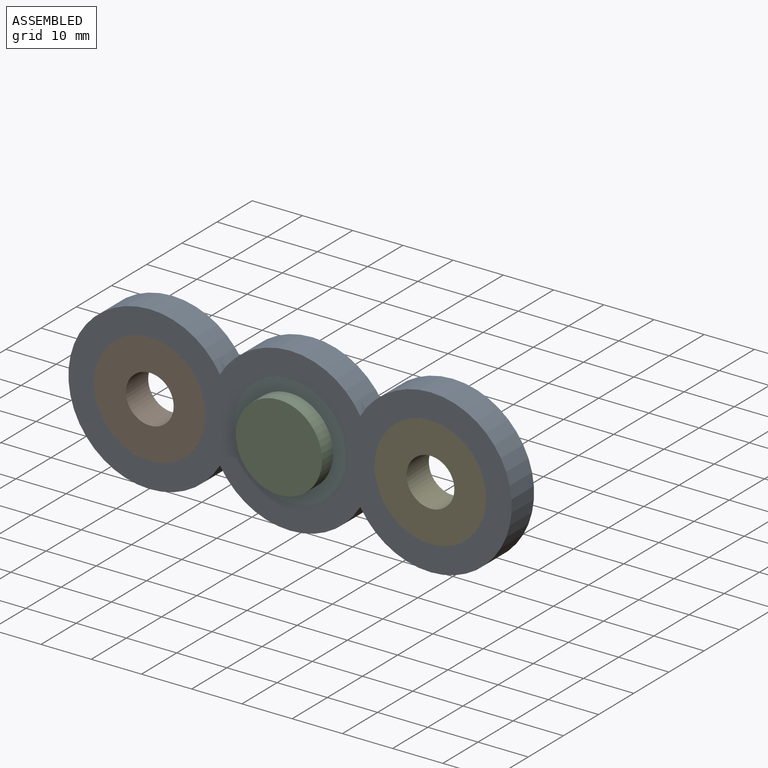
[diagram: assembled view]
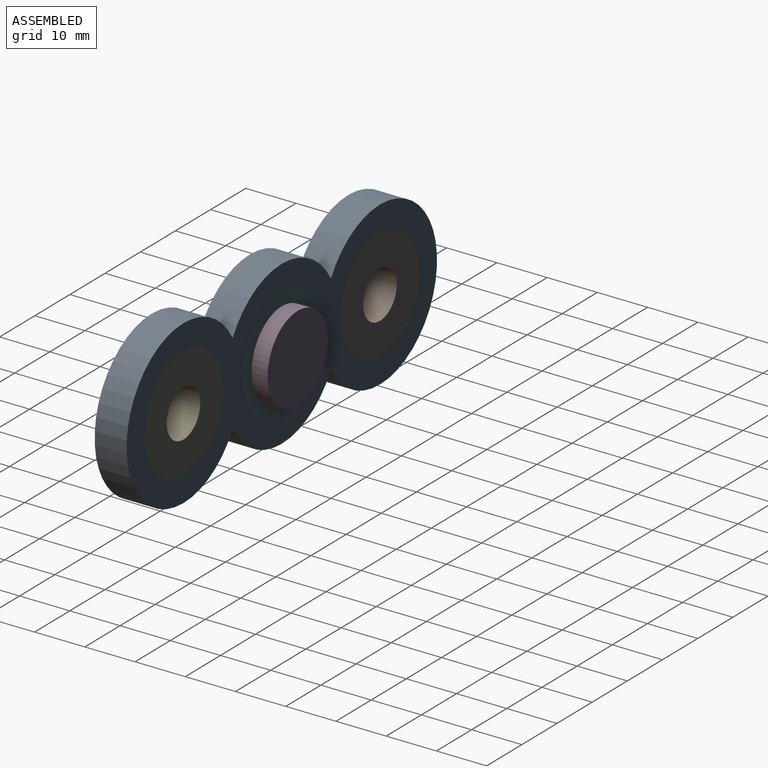
[diagram: assembled view, second angle]
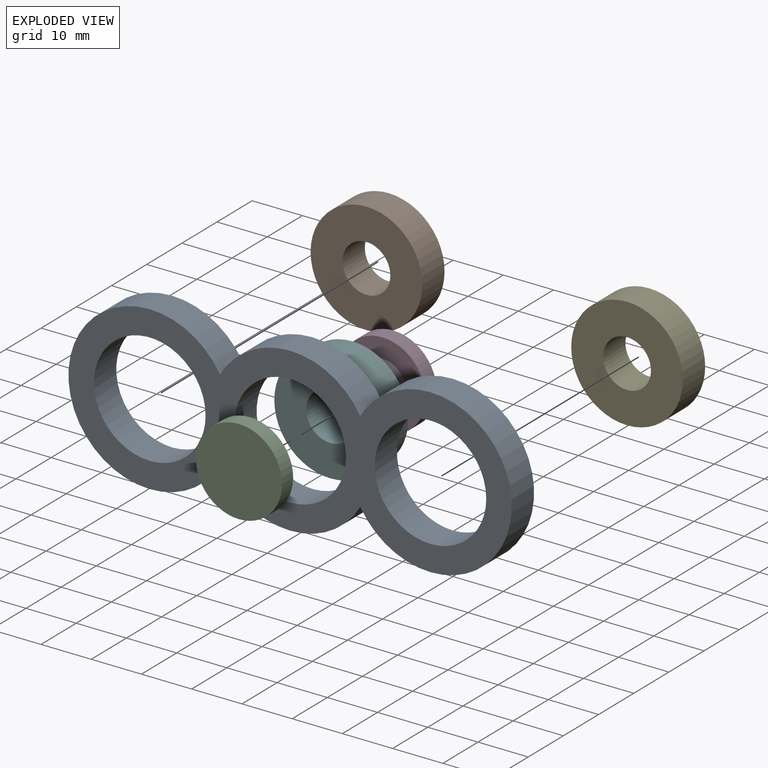
[diagram: exploded view]
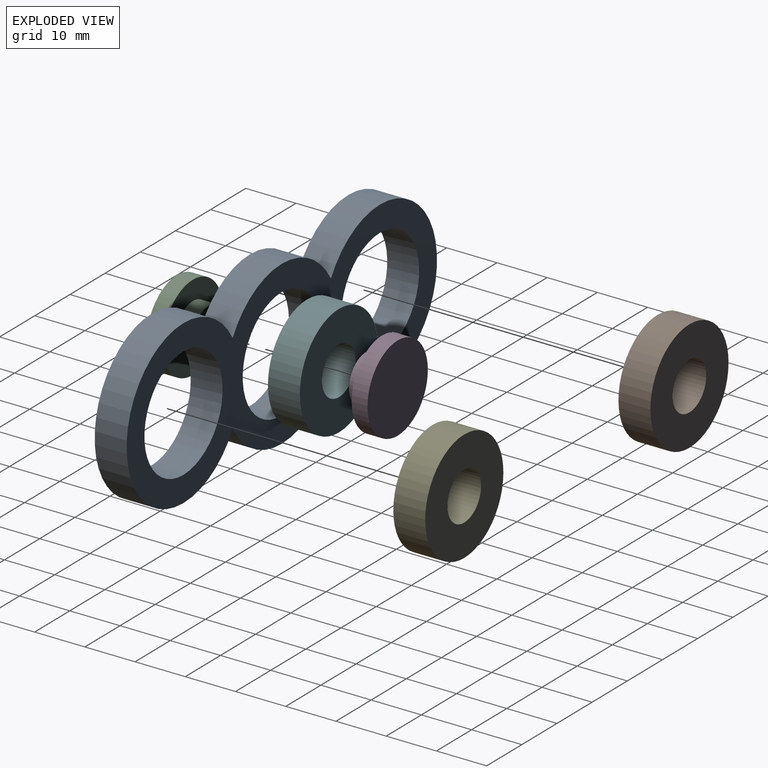
[diagram: exploded view, second angle]
ASSEMBLY  parts=6 mates=10
PART A: 9 faces, bbox 88.3x6.4x32.4 mm
  f0: cylinder r=16.19mm len=32.39mm, axis (0,1,0), area 537mm2, adj f1,f3,f4,f5
  f1: cylinder r=16.19mm len=27.94mm, axis (0,1,0), area 214mm2, adj f0,f2,f4,f5
  f2: cylinder r=16.19mm len=32.39mm, axis (0,1,0), area 537mm2, adj f1,f3,f4,f5
  f3: cylinder r=16.19mm len=27.94mm, axis (0,1,0), area 214mm2, adj f0,f2,f4,f5
  f4: plane 88.27x32.39mm, normal (0,-1,0), area 1208.8mm2, adj f0,f1,f2,f3,f6,f7,f8
  f5: plane 88.27x32.39mm, normal (0,1,0), area 1208.8mm2, adj f0,f1,f2,f3,f6,f7,f8
  f6: cylinder r=11.11mm len=22.23mm, axis (0,-1,0), area 443.4mm2, adj f4,f5
  f7: cylinder r=11.11mm len=22.23mm, axis (0,-1,0), area 443.4mm2, adj f4,f5
  f8: cylinder r=11.11mm len=22.23mm, axis (0,-1,0), area 443.4mm2, adj f4,f5
PART B: 4 faces, bbox 22.2x6.4x22.2 mm
  f0: cylinder r=11.11mm len=22.23mm, axis (0,1,0), area 443.4mm2, adj f1,f2
  f1: plane 22.23x22.23mm, normal (0,-1,0), area 316.7mm2, adj f0,f3
  f2: plane 22.23x22.23mm, normal (0,1,0), area 316.7mm2, adj f0,f3
  f3: cylinder r=4.76mm len=9.53mm, axis (0,-1,0), area 190mm2, adj f1,f2
PART C: 5 faces, bbox 17.1x6.4x17.1 mm
  f0: cylinder r=8.57mm len=17.15mm, axis (0,1,0), area 171mm2, adj f1,f2
  f1: plane 17.15x17.15mm, normal (0,-1,0), area 159.6mm2, adj f0,f3
  f2: plane 17.15x17.15mm, normal (0,1,0), area 230.9mm2, adj f0
  f3: cylinder r=4.76mm len=9.53mm, axis (0,1,0), area 95mm2, adj f1,f4
  f4: plane 9.53x9.53mm, normal (0,-1,0), area 71.3mm2, adj f3
PART D: same geometry as C
PART E: same geometry as B
PART F: same geometry as B
PLACE A t=(-60.14,-6.9,2.54)mm
PLACE B t=(-88.08,-6.9,2.54)mm
PLACE C rot(axis=(-1,0,0),180deg) t=(-60.14,-16.42,2.54)mm
PLACE D t=(-60.14,-3.72,2.54)mm
PLACE E t=(-32.2,-6.9,2.54)mm
PLACE F t=(-60.14,-6.9,2.54)mm
MATE planar E.f0 <-> A.f4  axis (0,-1,0) through (-32.2,-13.25,2.54)mm
MATE planar C.f0 <-> F.f0  axis (0,1,0) through (-60.14,-13.25,2.54)mm
MATE cylindrical C.f0 <-> F.f0  axis (0,-1,0) through (-60.14,-13.25,2.54)mm
MATE cylindrical E.f0 <-> A.f0  axis (0,1,0) through (-32.2,-6.9,2.54)mm
MATE cylindrical D.f0 <-> F.f0  axis (0,1,0) through (-60.14,-6.9,2.54)mm
MATE cylindrical F.f0 <-> A.f1  axis (0,1,0) through (-60.14,-6.9,2.54)mm
MATE planar A.f1 <-> B.f0  axis (0,-1,0) through (-60.14,-13.25,2.54)mm
MATE planar A.f4 <-> F.f0  axis (0,-1,0) through (-74.11,-13.25,10.73)mm
MATE planar F.f0 <-> D.f0  axis (0,1,0) through (-60.14,-6.9,2.54)mm
MATE cylindrical B.f0 <-> A.f2  axis (0,1,0) through (-88.08,-10.07,2.54)mm
